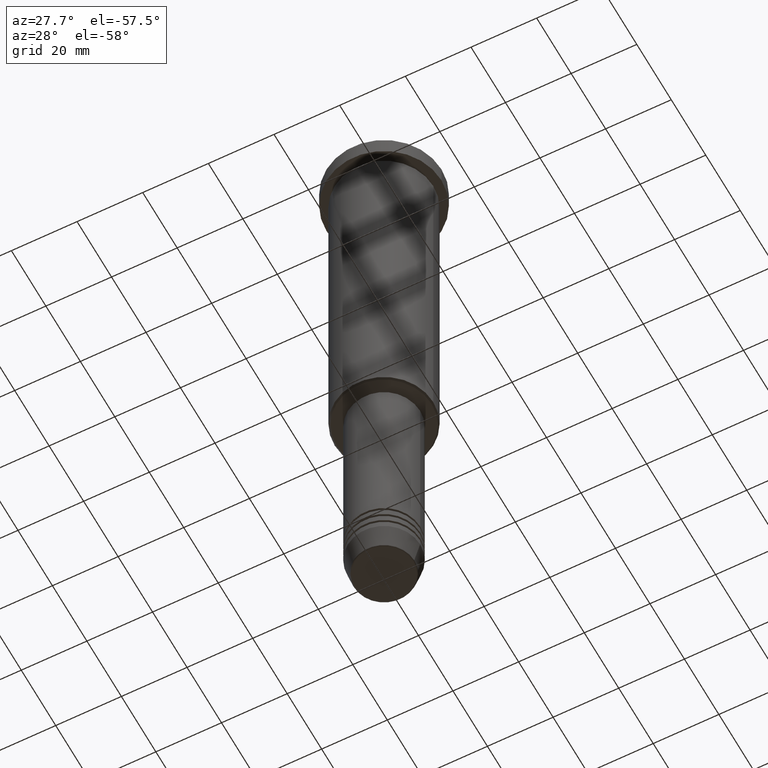
[diagram: clean part render]
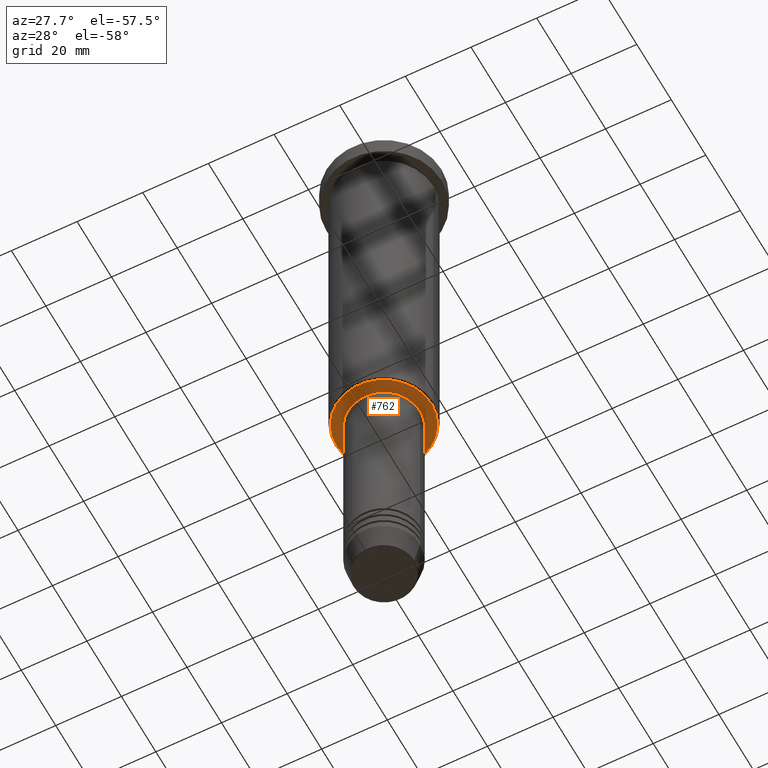
[diagram: same view with one face highlighted and labeled with its STEP entity id]
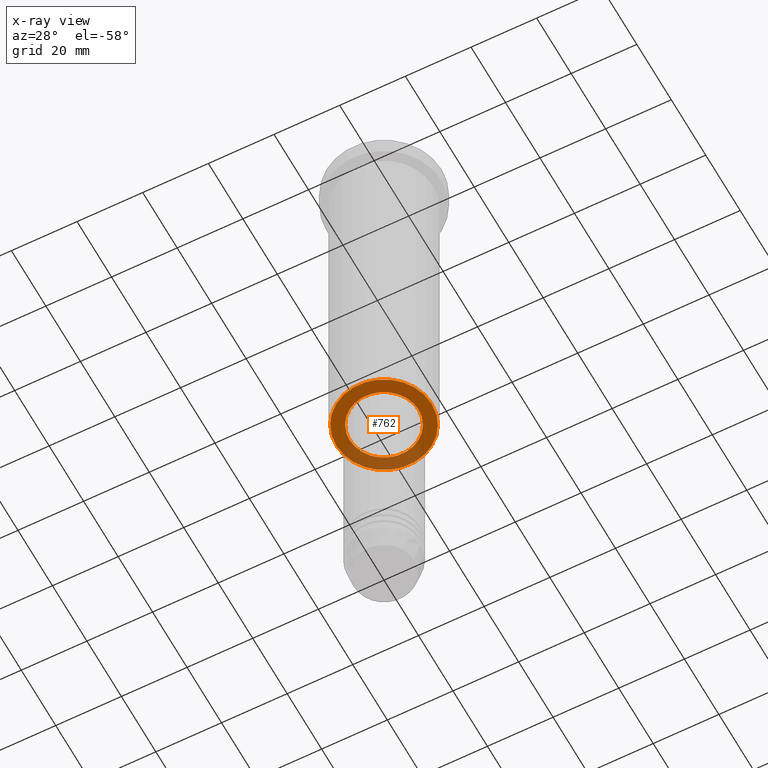
[diagram: x-ray of the same camera — body ghosted, the highlighted face saturated]
A machine part, auxiliary view. The second image highlights one B-rep face of the part: STEP entity #762.
The next image is the same camera in x-ray: the body ghosted, the highlighted face saturated — about 30% of this face is hidden behind the body in this view.
In plain terms, the highlighted planar face has unit normal (0, 0, -1).
Its self-contained STEP definition (entity closure, byte-faithful):
#8 = VERTEX_POINT ( 'NONE', #698 ) ;
#15 = CARTESIAN_POINT ( 'NONE',  ( 0.000000000000000000, 15.00000000000000000, -116.0000000000000142 ) ) ;
#22 = DIRECTION ( 'NONE',  ( -1.000000000000000000, 0.000000000000000000, -0.000000000000000000 ) ) ;
#40 = EDGE_CURVE ( 'NONE', #8, #1120, #644, .T. ) ;
#45 = FACE_OUTER_BOUND ( 'NONE', #823, .T. ) ;
#47 = DIRECTION ( 'NONE',  ( -1.000000000000000000, 0.000000000000000000, 0.000000000000000000 ) ) ;
#69 = DIRECTION ( 'NONE',  ( -0.000000000000000000, -0.000000000000000000, 1.000000000000000000 ) ) ;
#164 = DIRECTION ( 'NONE',  ( -0.000000000000000000, -0.000000000000000000, 1.000000000000000000 ) ) ;
#212 = ORIENTED_EDGE ( 'NONE', *, *, #562, .T. ) ;
#227 = DIRECTION ( 'NONE',  ( 0.000000000000000000, 0.000000000000000000, -1.000000000000000000 ) ) ;
#231 = DIRECTION ( 'NONE',  ( 0.000000000000000000, 0.000000000000000000, -1.000000000000000000 ) ) ;
#291 = DIRECTION ( 'NONE',  ( 0.000000000000000000, 0.000000000000000000, -1.000000000000000000 ) ) ;
#294 = ORIENTED_EDGE ( 'NONE', *, *, #40, .T. ) ;
#326 = CARTESIAN_POINT ( 'NONE',  ( 0.000000000000000000, 0.000000000000000000, -116.0000000000000142 ) ) ;
#333 = DIRECTION ( 'NONE',  ( 1.000000000000000000, 0.000000000000000000, 0.000000000000000000 ) ) ;
#350 = AXIS2_PLACEMENT_3D ( 'NONE', #452, #164, #368 ) ;
#368 = DIRECTION ( 'NONE',  ( 1.000000000000000000, 0.000000000000000000, 0.000000000000000000 ) ) ;
#411 = DIRECTION ( 'NONE',  ( -1.000000000000000000, 0.000000000000000000, 0.000000000000000000 ) ) ;
#424 = EDGE_CURVE ( 'NONE', #1120, #8, #829, .T. ) ;
#431 = CARTESIAN_POINT ( 'NONE',  ( -10.49999999999999822, 1.285879139104720633E-15, -116.0000000000000142 ) ) ;
#452 = CARTESIAN_POINT ( 'NONE',  ( 0.000000000000000000, 0.000000000000000000, -116.0000000000000142 ) ) ;
#470 = AXIS2_PLACEMENT_3D ( 'NONE', #706, #69, #333 ) ;
#485 = AXIS2_PLACEMENT_3D ( 'NONE', #515, #227, #411 ) ;
#491 = VERTEX_POINT ( 'NONE', #645 ) ;
#515 = CARTESIAN_POINT ( 'NONE',  ( 0.000000000000000000, 0.000000000000000000, -116.0000000000000142 ) ) ;
#562 = EDGE_CURVE ( 'NONE', #491, #988, #1016, .T. ) ;
#642 = ORIENTED_EDGE ( 'NONE', *, *, #424, .T. ) ;
#644 = CIRCLE ( 'NONE', #976, 14.50000000000003908 ) ;
#645 = CARTESIAN_POINT ( 'NONE',  ( 10.49999999999999822, 0.000000000000000000, -116.0000000000000142 ) ) ;
#687 = EDGE_CURVE ( 'NONE', #988, #491, #905, .T. ) ;
#698 = CARTESIAN_POINT ( 'NONE',  ( -14.50000000000003908, 1.806354028742348168E-15, -116.0000000000000142 ) ) ;
#706 = CARTESIAN_POINT ( 'NONE',  ( 0.000000000000000000, 0.000000000000000000, -116.0000000000000142 ) ) ;
#728 = FACE_BOUND ( 'NONE', #1169, .T. ) ;
#761 = ORIENTED_EDGE ( 'NONE', *, *, #687, .T. ) ;
#762 = ADVANCED_FACE ( 'NONE', ( #45, #728 ), #925, .T. ) ;
#806 = CARTESIAN_POINT ( 'NONE',  ( 14.50000000000003908, 0.000000000000000000, -116.0000000000000142 ) ) ;
#823 = EDGE_LOOP ( 'NONE', ( #642, #294 ) ) ;
#829 = CIRCLE ( 'NONE', #485, 14.50000000000003908 ) ;
#905 = CIRCLE ( 'NONE', #470, 10.49999999999999822 ) ;
#925 = PLANE ( 'NONE',  #929 ) ;
#929 = AXIS2_PLACEMENT_3D ( 'NONE', #15, #291, #22 ) ;
#976 = AXIS2_PLACEMENT_3D ( 'NONE', #326, #231, #47 ) ;
#988 = VERTEX_POINT ( 'NONE', #431 ) ;
#1016 = CIRCLE ( 'NONE', #350, 10.49999999999999822 ) ;
#1120 = VERTEX_POINT ( 'NONE', #806 ) ;
#1169 = EDGE_LOOP ( 'NONE', ( #212, #761 ) ) ;